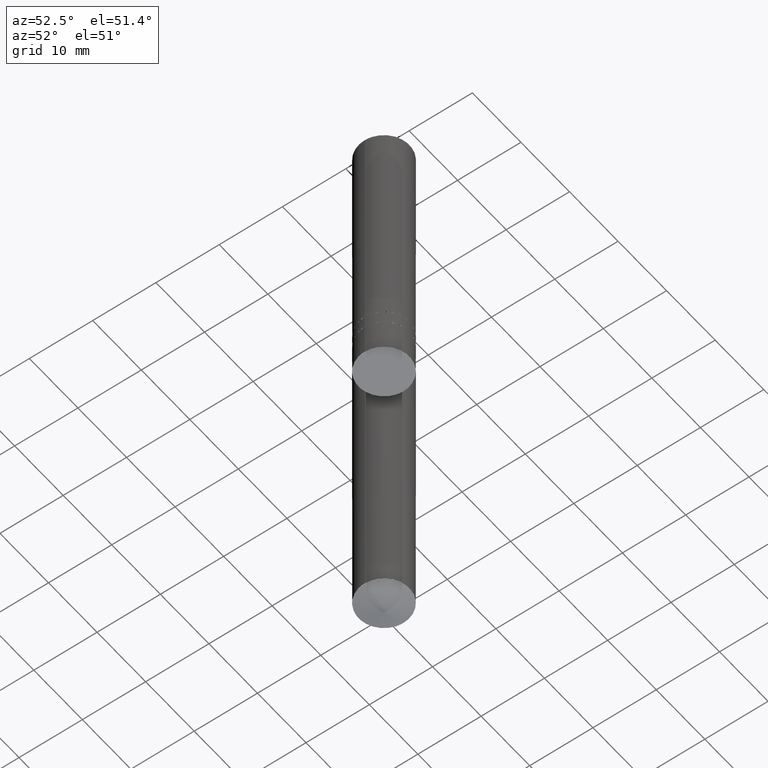
[diagram: clean part render]
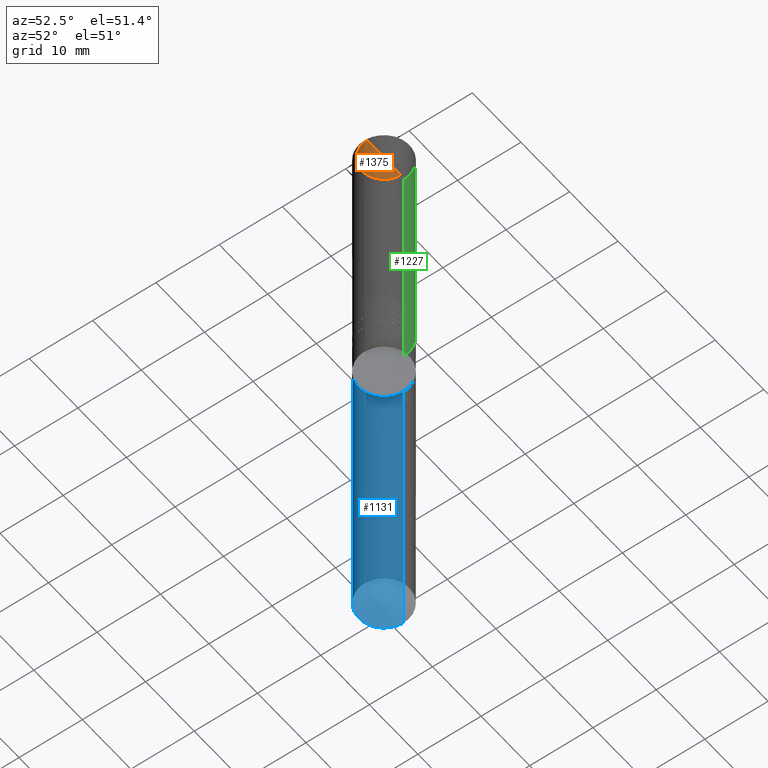
[diagram: same view with three faces highlighted in distinct colors, each labeled with its STEP entity id]
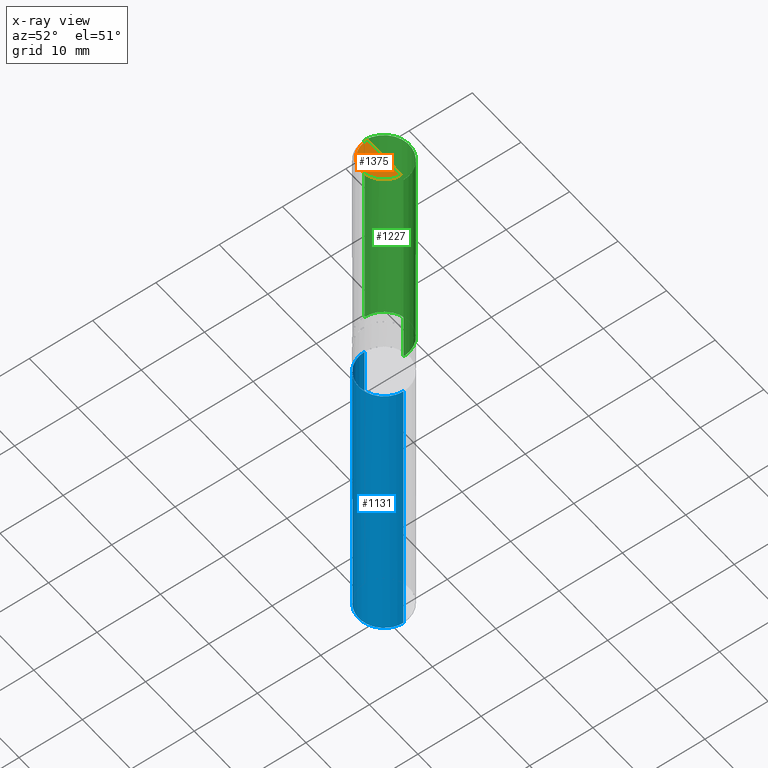
[diagram: x-ray of the same camera — body ghosted, the three highlighted faces saturated]
A machine part, auxiliary view with three faces highlighted in distinct colors.
The next image is the same camera in x-ray (body ghosted, the three faces saturated) — at least one of them is partly hidden behind the body in this view.
Their STEP definitions:

[orange] entity #1375 — the highlighted face is a freeform B-spline surface patch.
#1021=CARTESIAN_POINT('',(3.5,0.0,36.0));
#1025=CARTESIAN_POINT('',(-3.5,0.0,36.0));
#1026=CARTESIAN_POINT('',(0.0,0.0,36.0));
#1036=CARTESIAN_POINT('',(-3.5,-3.5,36.0));
#1037=CARTESIAN_POINT('',(0.0,-3.5,36.0));
#1038=CARTESIAN_POINT('',(3.5,-3.5,36.0));
#1360=(
BOUNDED_SURFACE()
B_SPLINE_SURFACE(1,2,(
(#1025,#1036,#1037,#1038,#1021),
(#1026,#1026,#1026,#1026,#1026)
), .UNSPECIFIED.,.F.,.F.,.F.)
B_SPLINE_SURFACE_WITH_KNOTS((2,2),(3,2,3),(
0.0,1.0),(
0.0,0.5,1.0), .UNSPECIFIED.)
GEOMETRIC_REPRESENTATION_ITEM()
RATIONAL_B_SPLINE_SURFACE(((1.0,0.707106781187,1.0,0.707106781187,1.0),
(1.0,0.707106781187,1.0,0.707106781187,1.0)
))
REPRESENTATION_ITEM('')
SURFACE()
);
#1361=(
BOUNDED_CURVE()
B_SPLINE_CURVE(2,(#1021,#1038,#1037,#1036,#1025),.UNSPECIFIED.,.F.,.F.)
B_SPLINE_CURVE_WITH_KNOTS((3,2,3),
(0.0,0.5,1.0),.UNSPECIFIED.)
CURVE()
GEOMETRIC_REPRESENTATION_ITEM()
RATIONAL_B_SPLINE_CURVE((1.0,0.707106781187,1.0,0.707106781187,1.0))
REPRESENTATION_ITEM('')
);
#1362=(
BOUNDED_CURVE()
B_SPLINE_CURVE(1,(#1025,#1026),.UNSPECIFIED.,.F.,.F.)
B_SPLINE_CURVE_WITH_KNOTS((2,2),
(0.0,1.0),.UNSPECIFIED.)
CURVE()
GEOMETRIC_REPRESENTATION_ITEM()
RATIONAL_B_SPLINE_CURVE((1.0,1.0))
REPRESENTATION_ITEM('')
);
#1363=(
BOUNDED_CURVE()
B_SPLINE_CURVE(1,(#1026,#1021),.UNSPECIFIED.,.F.,.F.)
B_SPLINE_CURVE_WITH_KNOTS((2,2),
(0.0,1.0),.UNSPECIFIED.)
CURVE()
GEOMETRIC_REPRESENTATION_ITEM()
RATIONAL_B_SPLINE_CURVE((1.0,1.0))
REPRESENTATION_ITEM('')
);
#1364=VERTEX_POINT('',#1021);
#1365=VERTEX_POINT('',#1025);
#1366=VERTEX_POINT('',#1026);
#1367=EDGE_CURVE('',#1364,#1365,#1361,.T.);
#1368=EDGE_CURVE('',#1365,#1366,#1362,.T.);
#1369=EDGE_CURVE('',#1366,#1364,#1363,.T.);
#1370=ORIENTED_EDGE('',*,*,#1367,.T.);
#1371=ORIENTED_EDGE('',*,*,#1368,.T.);
#1372=ORIENTED_EDGE('',*,*,#1369,.T.);
#1373=EDGE_LOOP('',(#1370,#1371,#1372));
#1374=FACE_OUTER_BOUND('',#1373,.T.);
#1375=ADVANCED_FACE('',(#1374),#1360,.T.);

[blue] entity #1131 — the highlighted face is a freeform B-spline surface patch.
#989=CARTESIAN_POINT('',(4.0,0.0,-53.544119062935));
#993=CARTESIAN_POINT('',(-4.0,0.0,-53.544119062935));
#994=CARTESIAN_POINT('',(4.0,0.0,-7.0));
#998=CARTESIAN_POINT('',(-4.0,0.0,-7.0));
#1000=CARTESIAN_POINT('',(-4.0,-4.0,-53.544119062935));
#1001=CARTESIAN_POINT('',(0.0,-4.0,-53.544119062935));
#1002=CARTESIAN_POINT('',(4.0,-4.0,-53.544119062935));
#1003=CARTESIAN_POINT('',(-4.0,-4.0,-7.0));
#1004=CARTESIAN_POINT('',(0.0,-4.0,-7.0));
#1005=CARTESIAN_POINT('',(4.0,-4.0,-7.0));
#1112=(
BOUNDED_SURFACE()
B_SPLINE_SURFACE(1,2,(
(#993,#1000,#1001,#1002,#989),
(#998,#1003,#1004,#1005,#994)
), .UNSPECIFIED.,.F.,.F.,.F.)
B_SPLINE_SURFACE_WITH_KNOTS((2,2),(3,2,3),(
0.0,1.0),(
0.0,0.5,1.0), .UNSPECIFIED.)
GEOMETRIC_REPRESENTATION_ITEM()
RATIONAL_B_SPLINE_SURFACE(((1.0,0.707106781187,1.0,0.707106781187,1.0),
(1.0,0.707106781187,1.0,0.707106781187,1.0)
))
REPRESENTATION_ITEM('')
SURFACE()
);
#1113=(
BOUNDED_CURVE()
B_SPLINE_CURVE(2,(#989,#1002,#1001,#1000,#993),.UNSPECIFIED.,.F.,.F.)
B_SPLINE_CURVE_WITH_KNOTS((3,2,3),
(0.0,0.5,1.0),.UNSPECIFIED.)
CURVE()
GEOMETRIC_REPRESENTATION_ITEM()
RATIONAL_B_SPLINE_CURVE((1.0,0.707106781187,1.0,0.707106781187,1.0))
REPRESENTATION_ITEM('')
);
#1114=(
BOUNDED_CURVE()
B_SPLINE_CURVE(1,(#993,#998),.UNSPECIFIED.,.F.,.F.)
B_SPLINE_CURVE_WITH_KNOTS((2,2),
(0.0,1.0),.UNSPECIFIED.)
CURVE()
GEOMETRIC_REPRESENTATION_ITEM()
RATIONAL_B_SPLINE_CURVE((1.0,1.0))
REPRESENTATION_ITEM('')
);
#1115=(
BOUNDED_CURVE()
B_SPLINE_CURVE(2,(#998,#1003,#1004,#1005,#994),.UNSPECIFIED.,.F.,.F.)
B_SPLINE_CURVE_WITH_KNOTS((3,2,3),
(0.0,0.5,1.0),.UNSPECIFIED.)
CURVE()
GEOMETRIC_REPRESENTATION_ITEM()
RATIONAL_B_SPLINE_CURVE((1.0,0.707106781187,1.0,0.707106781187,1.0))
REPRESENTATION_ITEM('')
);
#1116=(
BOUNDED_CURVE()
B_SPLINE_CURVE(1,(#994,#989),.UNSPECIFIED.,.F.,.F.)
B_SPLINE_CURVE_WITH_KNOTS((2,2),
(0.0,1.0),.UNSPECIFIED.)
CURVE()
GEOMETRIC_REPRESENTATION_ITEM()
RATIONAL_B_SPLINE_CURVE((1.0,1.0))
REPRESENTATION_ITEM('')
);
#1117=VERTEX_POINT('',#989);
#1118=VERTEX_POINT('',#993);
#1119=VERTEX_POINT('',#994);
#1120=VERTEX_POINT('',#998);
#1121=EDGE_CURVE('',#1117,#1118,#1113,.T.);
#1122=EDGE_CURVE('',#1118,#1120,#1114,.T.);
#1123=EDGE_CURVE('',#1120,#1119,#1115,.T.);
#1124=EDGE_CURVE('',#1119,#1117,#1116,.T.);
#1125=ORIENTED_EDGE('',*,*,#1121,.T.);
#1126=ORIENTED_EDGE('',*,*,#1122,.T.);
#1127=ORIENTED_EDGE('',*,*,#1123,.T.);
#1128=ORIENTED_EDGE('',*,*,#1124,.T.);
#1129=EDGE_LOOP('',(#1125,#1126,#1127,#1128));
#1130=FACE_OUTER_BOUND('',#1129,.T.);
#1131=ADVANCED_FACE('',(#1130),#1112,.T.);

[green] entity #1227 — the highlighted face is a freeform B-spline surface patch.
#1011=CARTESIAN_POINT('',(4.0,0.0,0.0));
#1012=CARTESIAN_POINT('',(4.0,4.0,0.0));
#1013=CARTESIAN_POINT('',(0.0,4.0,0.0));
#1014=CARTESIAN_POINT('',(-4.0,4.0,0.0));
#1015=CARTESIAN_POINT('',(-4.0,0.0,0.0));
#1016=CARTESIAN_POINT('',(4.0,0.0,35.5));
#1017=CARTESIAN_POINT('',(4.0,4.0,35.5));
#1018=CARTESIAN_POINT('',(0.0,4.0,35.5));
#1019=CARTESIAN_POINT('',(-4.0,4.0,35.5));
#1020=CARTESIAN_POINT('',(-4.0,0.0,35.5));
#1208=(
BOUNDED_SURFACE()
B_SPLINE_SURFACE(1,2,(
(#1011,#1012,#1013,#1014,#1015),
(#1016,#1017,#1018,#1019,#1020)
), .UNSPECIFIED.,.F.,.F.,.F.)
B_SPLINE_SURFACE_WITH_KNOTS((2,2),(3,2,3),(
0.0,1.0),(
0.0,0.5,1.0), .UNSPECIFIED.)
GEOMETRIC_REPRESENTATION_ITEM()
RATIONAL_B_SPLINE_SURFACE(((1.0,0.707106781187,1.0,0.707106781187,1.0),
(1.0,0.707106781187,1.0,0.707106781187,1.0)
))
REPRESENTATION_ITEM('')
SURFACE()
);
#1209=(
BOUNDED_CURVE()
B_SPLINE_CURVE(2,(#1015,#1014,#1013,#1012,#1011),.UNSPECIFIED.,.F.,.F.)
B_SPLINE_CURVE_WITH_KNOTS((3,2,3),
(0.0,0.5,1.0),.UNSPECIFIED.)
CURVE()
GEOMETRIC_REPRESENTATION_ITEM()
RATIONAL_B_SPLINE_CURVE((1.0,0.707106781187,1.0,0.707106781187,1.0))
REPRESENTATION_ITEM('')
);
#1210=(
BOUNDED_CURVE()
B_SPLINE_CURVE(1,(#1011,#1016),.UNSPECIFIED.,.F.,.F.)
B_SPLINE_CURVE_WITH_KNOTS((2,2),
(0.0,1.0),.UNSPECIFIED.)
CURVE()
GEOMETRIC_REPRESENTATION_ITEM()
RATIONAL_B_SPLINE_CURVE((1.0,1.0))
REPRESENTATION_ITEM('')
);
#1211=(
BOUNDED_CURVE()
B_SPLINE_CURVE(2,(#1016,#1017,#1018,#1019,#1020),.UNSPECIFIED.,.F.,.F.)
B_SPLINE_CURVE_WITH_KNOTS((3,2,3),
(0.0,0.5,1.0),.UNSPECIFIED.)
CURVE()
GEOMETRIC_REPRESENTATION_ITEM()
RATIONAL_B_SPLINE_CURVE((1.0,0.707106781187,1.0,0.707106781187,1.0))
REPRESENTATION_ITEM('')
);
#1212=(
BOUNDED_CURVE()
B_SPLINE_CURVE(1,(#1020,#1015),.UNSPECIFIED.,.F.,.F.)
B_SPLINE_CURVE_WITH_KNOTS((2,2),
(0.0,1.0),.UNSPECIFIED.)
CURVE()
GEOMETRIC_REPRESENTATION_ITEM()
RATIONAL_B_SPLINE_CURVE((1.0,1.0))
REPRESENTATION_ITEM('')
);
#1213=VERTEX_POINT('',#1011);
#1214=VERTEX_POINT('',#1015);
#1215=VERTEX_POINT('',#1016);
#1216=VERTEX_POINT('',#1020);
#1217=EDGE_CURVE('',#1214,#1213,#1209,.T.);
#1218=EDGE_CURVE('',#1213,#1215,#1210,.T.);
#1219=EDGE_CURVE('',#1215,#1216,#1211,.T.);
#1220=EDGE_CURVE('',#1216,#1214,#1212,.T.);
#1221=ORIENTED_EDGE('',*,*,#1217,.T.);
#1222=ORIENTED_EDGE('',*,*,#1218,.T.);
#1223=ORIENTED_EDGE('',*,*,#1219,.T.);
#1224=ORIENTED_EDGE('',*,*,#1220,.T.);
#1225=EDGE_LOOP('',(#1221,#1222,#1223,#1224));
#1226=FACE_OUTER_BOUND('',#1225,.T.);
#1227=ADVANCED_FACE('',(#1226),#1208,.T.);